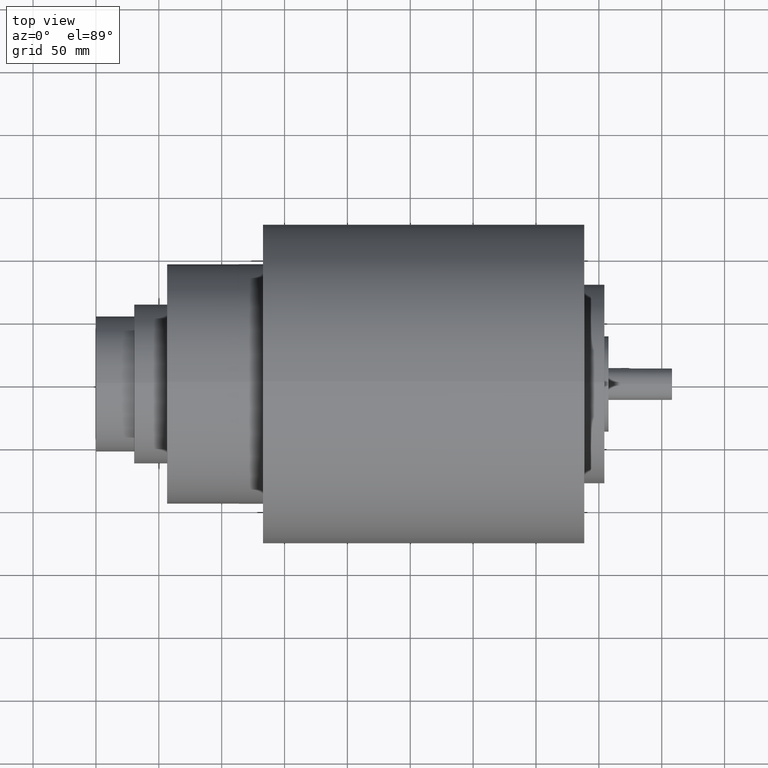
[diagram: clean part render]
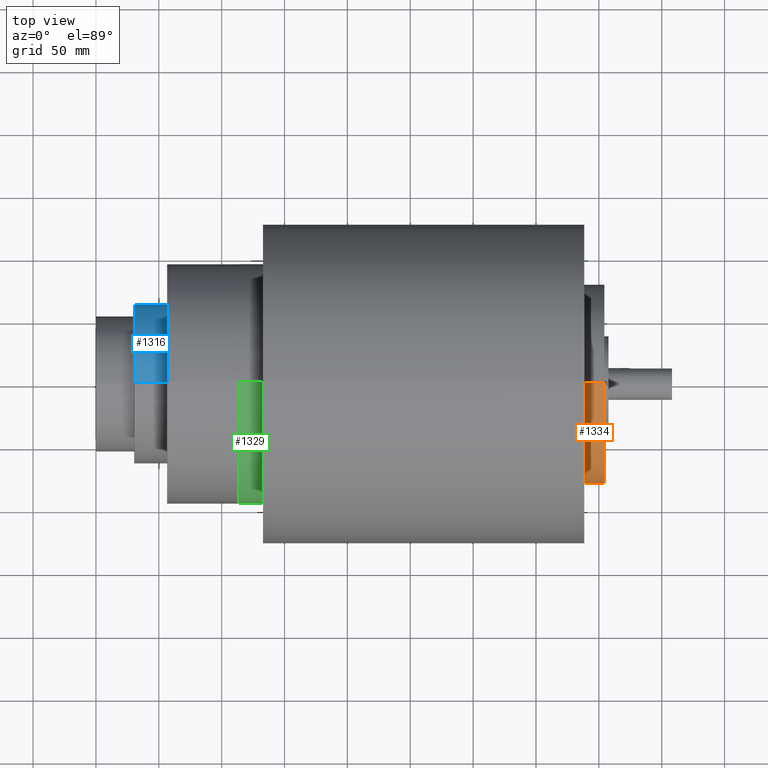
[diagram: same view with three faces highlighted in distinct colors, each labeled with its STEP entity id]
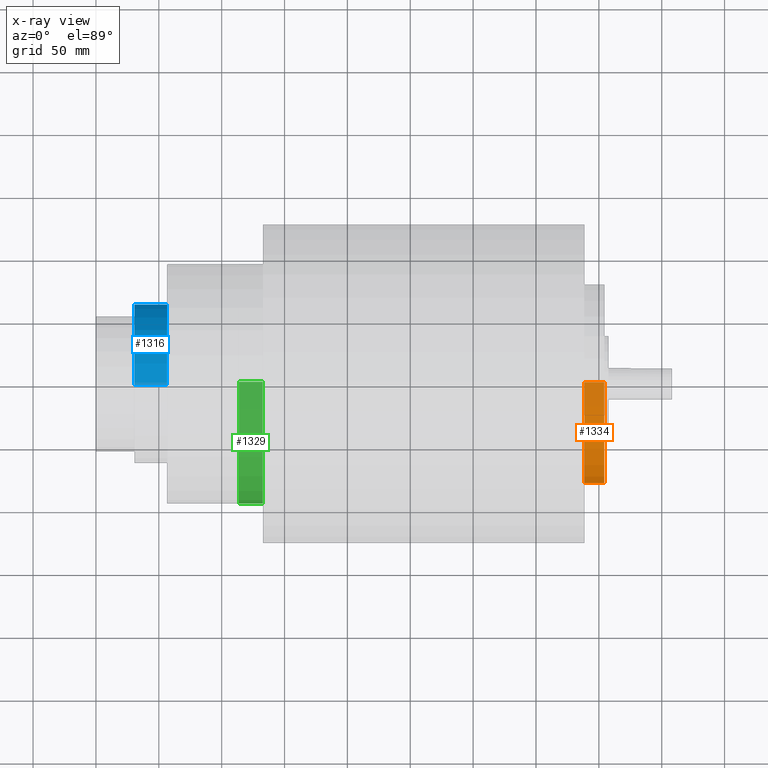
[diagram: x-ray of the same camera — body ghosted, the three highlighted faces saturated]
A machine part, top view with three faces highlighted in distinct colors.
The next image is the same camera in x-ray (body ghosted, the three faces saturated) — at least one of them is partly hidden behind the body in this view.
Their STEP definitions:

[orange] entity #1334 — the highlighted cylindrical surface (partial cylindrical patch) has radius 79.375 mm, axis along (-1, -0, -0).
#75 = DIRECTION ( 'NONE',  ( 0.0000000000000000000, 0.0000000000000000000, -1.000000000000000000 ) ) ;
#76 = DIRECTION ( 'NONE',  ( 1.000000000000000000, 0.0000000000000000000, 0.0000000000000000000 ) ) ;
#78 = CARTESIAN_POINT ( 'NONE',  ( 15.29500000000000200, 0.0000000000000000000, 0.0000000000000000000 ) ) ;
#208 = FACE_OUTER_BOUND ( 'NONE', #579, .T. ) ;
#217 = CYLINDRICAL_SURFACE ( 'NONE', #2643, 3.125000000000000000 ) ;
#579 = EDGE_LOOP ( 'NONE', ( #1511, #1512, #1513, #1514 ) ) ;
#665 = VERTEX_POINT ( 'NONE', #783 ) ;
#666 = VERTEX_POINT ( 'NONE', #784 ) ;
#669 = VERTEX_POINT ( 'NONE', #787 ) ;
#670 = VERTEX_POINT ( 'NONE', #788 ) ;
#783 = CARTESIAN_POINT ( 'NONE',  ( 15.29500000000000200, 0.0000000000000000000, 3.125000000000000000 ) ) ;
#784 = CARTESIAN_POINT ( 'NONE',  ( 15.29500000000000200, 3.827021247335478300E-016, -3.125000000000000000 ) ) ;
#787 = CARTESIAN_POINT ( 'NONE',  ( 15.91500000000000300, 0.0000000000000000000, 3.125000000000000000 ) ) ;
#788 = CARTESIAN_POINT ( 'NONE',  ( 15.91500000000000300, 3.827021247335478300E-016, -3.125000000000000000 ) ) ;
#939 = CARTESIAN_POINT ( 'NONE',  ( 15.91500000000000300, 0.0000000000000000000, 0.0000000000000000000 ) ) ;
#940 = DIRECTION ( 'NONE',  ( -1.000000000000000000, -0.0000000000000000000, -0.0000000000000000000 ) ) ;
#941 = DIRECTION ( 'NONE',  ( 0.0000000000000000000, 0.0000000000000000000, -1.000000000000000000 ) ) ;
#1013 = EDGE_CURVE ( 'NONE', #670, #669, #1706, .T. ) ;
#1035 = EDGE_CURVE ( 'NONE', #665, #666, #1731, .T. ) ;
#1109 = EDGE_CURVE ( 'NONE', #670, #666, #1804, .T. ) ;
#1111 = EDGE_CURVE ( 'NONE', #669, #665, #1819, .T. ) ;
#1223 = AXIS2_PLACEMENT_3D ( 'NONE', #939, #940, #941 ) ;
#1244 = AXIS2_PLACEMENT_3D ( 'NONE', #78, #76, #75 ) ;
#1334 = ADVANCED_FACE ( 'NONE', ( #208 ), #217, .T. ) ;
#1511 = ORIENTED_EDGE ( 'NONE', *, *, #1109, .F. ) ;
#1512 = ORIENTED_EDGE ( 'NONE', *, *, #1013, .T. ) ;
#1513 = ORIENTED_EDGE ( 'NONE', *, *, #1111, .T. ) ;
#1514 = ORIENTED_EDGE ( 'NONE', *, *, #1035, .T. ) ;
#1706 = CIRCLE ( 'NONE', #1223, 3.125000000000000000 ) ;
#1731 = CIRCLE ( 'NONE', #1244, 3.125000000000000000 ) ;
#1804 = LINE ( 'NONE', #2056, #1828 ) ;
#1819 = LINE ( 'NONE', #2060, #1839 ) ;
#1828 = VECTOR ( 'NONE', #2057, 39.37007874015748100 ) ;
#1839 = VECTOR ( 'NONE', #2061, 39.37007874015748100 ) ;
#2056 = CARTESIAN_POINT ( 'NONE',  ( 24.75883476483185000, 3.827021247335478300E-016, -3.125000000000000000 ) ) ;
#2057 = DIRECTION ( 'NONE',  ( -1.000000000000000000, -0.0000000000000000000, -0.0000000000000000000 ) ) ;
#2060 = CARTESIAN_POINT ( 'NONE',  ( 24.75883476483185000, 0.0000000000000000000, 3.125000000000000000 ) ) ;
#2061 = DIRECTION ( 'NONE',  ( -1.000000000000000000, -0.0000000000000000000, -0.0000000000000000000 ) ) ;
#2457 = CARTESIAN_POINT ( 'NONE',  ( 24.75883476483185000, 0.0000000000000000000, 0.0000000000000000000 ) ) ;
#2459 = DIRECTION ( 'NONE',  ( 0.0000000000000000000, 0.0000000000000000000, 1.000000000000000000 ) ) ;
#2460 = DIRECTION ( 'NONE',  ( -1.000000000000000000, -0.0000000000000000000, -0.0000000000000000000 ) ) ;
#2643 = AXIS2_PLACEMENT_3D ( 'NONE', #2457, #2460, #2459 ) ;

[blue] entity #1316 — the highlighted cylindrical surface (partial cylindrical patch) has radius 63.5 mm, axis along (-1, -0, -0).
#165 = FACE_OUTER_BOUND ( 'NONE', #539, .T. ) ;
#174 = CYLINDRICAL_SURFACE ( 'NONE', #2625, 2.500000000000000000 ) ;
#539 = EDGE_LOOP ( 'NONE', ( #1417, #1418, #1419, #1420 ) ) ;
#625 = VERTEX_POINT ( 'NONE', #743 ) ;
#626 = VERTEX_POINT ( 'NONE', #744 ) ;
#631 = VERTEX_POINT ( 'NONE', #749 ) ;
#632 = VERTEX_POINT ( 'NONE', #750 ) ;
#743 = CARTESIAN_POINT ( 'NONE',  ( 1.206000000000000200, 3.061616997868383100E-016, -2.500000000000000000 ) ) ;
#744 = CARTESIAN_POINT ( 'NONE',  ( 1.206000000000000200, 0.0000000000000000000, 2.500000000000000000 ) ) ;
#749 = CARTESIAN_POINT ( 'NONE',  ( 2.224999999999999200, 0.0000000000000000000, 2.500000000000000000 ) ) ;
#750 = CARTESIAN_POINT ( 'NONE',  ( 2.224999999999999200, 3.061616997868383100E-016, -2.500000000000000000 ) ) ;
#1130 = EDGE_CURVE ( 'NONE', #632, #625, #1873, .T. ) ;
#1131 = EDGE_CURVE ( 'NONE', #631, #632, #1878, .T. ) ;
#1132 = EDGE_CURVE ( 'NONE', #631, #626, #1871, .T. ) ;
#1172 = EDGE_CURVE ( 'NONE', #625, #626, #1925, .T. ) ;
#1316 = ADVANCED_FACE ( 'NONE', ( #165 ), #174, .T. ) ;
#1417 = ORIENTED_EDGE ( 'NONE', *, *, #1131, .T. ) ;
#1418 = ORIENTED_EDGE ( 'NONE', *, *, #1130, .T. ) ;
#1419 = ORIENTED_EDGE ( 'NONE', *, *, #1172, .T. ) ;
#1420 = ORIENTED_EDGE ( 'NONE', *, *, #1132, .F. ) ;
#1866 = VECTOR ( 'NONE', #2111, 39.37007874015748100 ) ;
#1871 = LINE ( 'NONE', #2110, #1866 ) ;
#1873 = LINE ( 'NONE', #2105, #1874 ) ;
#1874 = VECTOR ( 'NONE', #2106, 39.37007874015748100 ) ;
#1878 = CIRCLE ( 'NONE', #2546, 2.500000000000000000 ) ;
#1925 = CIRCLE ( 'NONE', #2571, 2.500000000000000000 ) ;
#2105 = CARTESIAN_POINT ( 'NONE',  ( 9.301067811865475900, 3.061616997868383100E-016, -2.500000000000000000 ) ) ;
#2106 = DIRECTION ( 'NONE',  ( -1.000000000000000000, -0.0000000000000000000, -0.0000000000000000000 ) ) ;
#2107 = CARTESIAN_POINT ( 'NONE',  ( 2.224999999999999200, 0.0000000000000000000, 0.0000000000000000000 ) ) ;
#2108 = DIRECTION ( 'NONE',  ( -1.000000000000000000, -0.0000000000000000000, -0.0000000000000000000 ) ) ;
#2109 = DIRECTION ( 'NONE',  ( 0.0000000000000000000, 0.0000000000000000000, -1.000000000000000000 ) ) ;
#2110 = CARTESIAN_POINT ( 'NONE',  ( 9.301067811865475900, 0.0000000000000000000, 2.500000000000000000 ) ) ;
#2111 = DIRECTION ( 'NONE',  ( -1.000000000000000000, -0.0000000000000000000, -0.0000000000000000000 ) ) ;
#2247 = CARTESIAN_POINT ( 'NONE',  ( 1.206000000000000200, 0.0000000000000000000, 0.0000000000000000000 ) ) ;
#2248 = DIRECTION ( 'NONE',  ( 1.000000000000000000, -0.0000000000000000000, -0.0000000000000000000 ) ) ;
#2249 = DIRECTION ( 'NONE',  ( 0.0000000000000000000, 0.0000000000000000000, 1.000000000000000000 ) ) ;
#2395 = DIRECTION ( 'NONE',  ( 0.0000000000000000000, 0.0000000000000000000, 1.000000000000000000 ) ) ;
#2399 = DIRECTION ( 'NONE',  ( -1.000000000000000000, -0.0000000000000000000, -0.0000000000000000000 ) ) ;
#2400 = CARTESIAN_POINT ( 'NONE',  ( 9.301067811865475900, 0.0000000000000000000, 0.0000000000000000000 ) ) ;
#2546 = AXIS2_PLACEMENT_3D ( 'NONE', #2107, #2108, #2109 ) ;
#2571 = AXIS2_PLACEMENT_3D ( 'NONE', #2247, #2248, #2249 ) ;
#2625 = AXIS2_PLACEMENT_3D ( 'NONE', #2400, #2399, #2395 ) ;

[green] entity #1329 — the highlighted cylindrical surface (partial cylindrical patch) has radius 95.25 mm, axis along (-1, -0, -0).
#88 = CARTESIAN_POINT ( 'NONE',  ( 4.480000000000000400, 0.0000000000000000000, 0.0000000000000000000 ) ) ;
#89 = DIRECTION ( 'NONE',  ( 1.000000000000000000, 0.0000000000000000000, 0.0000000000000000000 ) ) ;
#90 = DIRECTION ( 'NONE',  ( 0.0000000000000000000, 0.0000000000000000000, -1.000000000000000000 ) ) ;
#198 = FACE_OUTER_BOUND ( 'NONE', #566, .T. ) ;
#202 = CYLINDRICAL_SURFACE ( 'NONE', #2638, 3.750000000000000000 ) ;
#566 = EDGE_LOOP ( 'NONE', ( #1481, #1482, #1483, #1484 ) ) ;
#635 = VERTEX_POINT ( 'NONE', #753 ) ;
#636 = VERTEX_POINT ( 'NONE', #754 ) ;
#657 = VERTEX_POINT ( 'NONE', #775 ) ;
#658 = VERTEX_POINT ( 'NONE', #776 ) ;
#753 = CARTESIAN_POINT ( 'NONE',  ( 5.225000000000001400, 0.0000000000000000000, 3.750000000000000000 ) ) ;
#754 = CARTESIAN_POINT ( 'NONE',  ( 5.225000000000001400, 4.592425496802575000E-016, -3.750000000000000000 ) ) ;
#775 = CARTESIAN_POINT ( 'NONE',  ( 4.480000000000000400, 0.0000000000000000000, 3.750000000000000000 ) ) ;
#776 = CARTESIAN_POINT ( 'NONE',  ( 4.480000000000000400, 4.592425496802575000E-016, -3.750000000000000000 ) ) ;
#1028 = EDGE_CURVE ( 'NONE', #657, #658, #1722, .T. ) ;
#1120 = EDGE_CURVE ( 'NONE', #636, #658, #1858, .T. ) ;
#1122 = EDGE_CURVE ( 'NONE', #635, #657, #1857, .T. ) ;
#1170 = EDGE_CURVE ( 'NONE', #636, #635, #1923, .T. ) ;
#1237 = AXIS2_PLACEMENT_3D ( 'NONE', #88, #89, #90 ) ;
#1329 = ADVANCED_FACE ( 'NONE', ( #198 ), #202, .T. ) ;
#1481 = ORIENTED_EDGE ( 'NONE', *, *, #1120, .F. ) ;
#1482 = ORIENTED_EDGE ( 'NONE', *, *, #1170, .T. ) ;
#1483 = ORIENTED_EDGE ( 'NONE', *, *, #1122, .T. ) ;
#1484 = ORIENTED_EDGE ( 'NONE', *, *, #1028, .T. ) ;
#1722 = CIRCLE ( 'NONE', #1237, 3.750000000000000000 ) ;
#1852 = VECTOR ( 'NONE', #2088, 39.37007874015748100 ) ;
#1854 = VECTOR ( 'NONE', #2083, 39.37007874015748100 ) ;
#1857 = LINE ( 'NONE', #2087, #1852 ) ;
#1858 = LINE ( 'NONE', #2074, #1854 ) ;
#1923 = CIRCLE ( 'NONE', #2569, 3.750000000000000000 ) ;
#2074 = CARTESIAN_POINT ( 'NONE',  ( 15.83660171779821200, 4.592425496802575000E-016, -3.750000000000000000 ) ) ;
#2083 = DIRECTION ( 'NONE',  ( -1.000000000000000000, -0.0000000000000000000, -0.0000000000000000000 ) ) ;
#2087 = CARTESIAN_POINT ( 'NONE',  ( 15.83660171779821200, 0.0000000000000000000, 3.750000000000000000 ) ) ;
#2088 = DIRECTION ( 'NONE',  ( -1.000000000000000000, -0.0000000000000000000, -0.0000000000000000000 ) ) ;
#2241 = CARTESIAN_POINT ( 'NONE',  ( 5.225000000000001400, 0.0000000000000000000, 0.0000000000000000000 ) ) ;
#2242 = DIRECTION ( 'NONE',  ( -1.000000000000000000, -0.0000000000000000000, -0.0000000000000000000 ) ) ;
#2243 = DIRECTION ( 'NONE',  ( 0.0000000000000000000, 0.0000000000000000000, -1.000000000000000000 ) ) ;
#2443 = DIRECTION ( 'NONE',  ( 0.0000000000000000000, 0.0000000000000000000, 1.000000000000000000 ) ) ;
#2445 = DIRECTION ( 'NONE',  ( -1.000000000000000000, -0.0000000000000000000, -0.0000000000000000000 ) ) ;
#2446 = CARTESIAN_POINT ( 'NONE',  ( 15.83660171779821200, 0.0000000000000000000, 0.0000000000000000000 ) ) ;
#2569 = AXIS2_PLACEMENT_3D ( 'NONE', #2241, #2242, #2243 ) ;
#2638 = AXIS2_PLACEMENT_3D ( 'NONE', #2446, #2445, #2443 ) ;